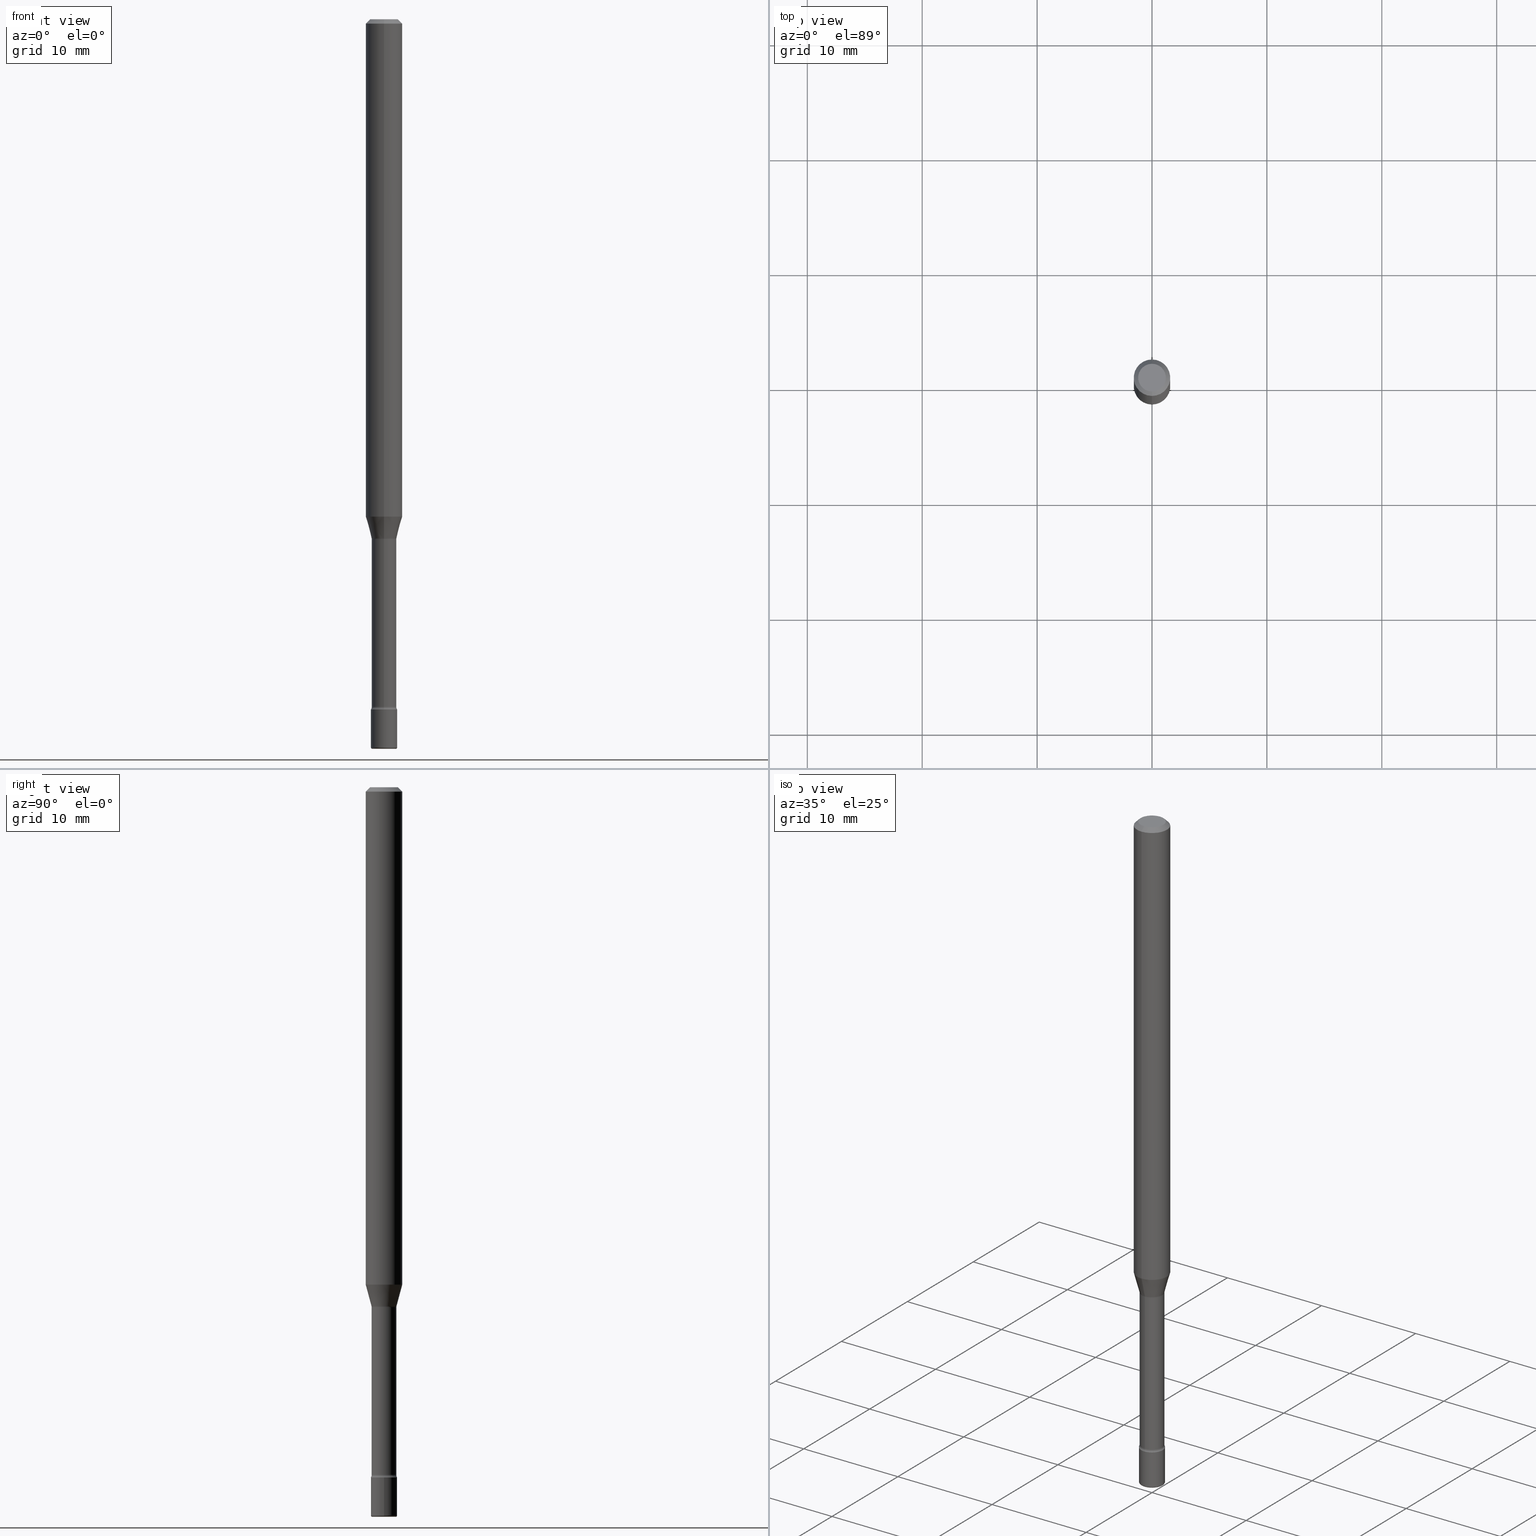
[diagram: canonical four-view strip — front | top / right | iso, engineering-drawing reading convention]
A machine part, canonical four-view strip (front | top / right | iso — engineering-drawing reading convention). The complete STEP part file that produces these views, byte-faithful:
ISO-10303-21;
HEADER;
FILE_DESCRIPTION (( 'STEP AP203' ),
    '1' );
FILE_NAME ('08951.STEP',
    '2024-03-06T20:12:09',
    ( '' ),
    ( '' ),
    'SwSTEP 2.0',
    'SolidWorks 2023',
    '' );
FILE_SCHEMA (( 'CONFIG_CONTROL_DESIGN' ));
ENDSEC;

DATA;
#1 =( NAMED_UNIT ( * ) SI_UNIT ( $, .STERADIAN. ) SOLID_ANGLE_UNIT ( ) );
#2 = CARTESIAN_POINT ( 'NONE',  ( -4.364351673553916201E-16, -0.06250000000000000000, 6.963011286457598096E-16 ) ) ;
#3 = CARTESIAN_POINT ( 'NONE',  ( 4.357763756151139053E-29, -6.221731716718877342E-15, -1.781974787463811216 ) ) ;
#4 = APPROVAL_ROLE ( '' ) ;
#5 = DIRECTION ( 'NONE',  ( -2.445468806185136597E-29, 3.491481338843145583E-15, 1.000000000000000000 ) ) ;
#6 = CIRCLE ( 'NONE', #153, 0.04499999999999999833 ) ;
#7 = FACE_OUTER_BOUND ( 'NONE', #436, .T. ) ;
#8 = CIRCLE ( 'NONE', #62, 0.04749999999999998668 ) ;
#9 = DIRECTION ( 'NONE',  ( -2.445468806185136597E-29, 3.491481338843145583E-15, 1.000000000000000000 ) ) ;
#10 = EDGE_LOOP ( 'NONE', ( #93, #165, #387, #404 ) ) ;
#11 = ADVANCED_FACE ( 'NONE', ( #146 ), #233, .T. ) ;
#12 = EDGE_LOOP ( 'NONE', ( #325, #338, #346, #192 ) ) ;
#13 = DIRECTION ( 'NONE',  ( 1.000000000000000000, -6.982962677686451304E-15, 0.000000000000000000 ) ) ;
#14 = CYLINDRICAL_SURFACE ( 'NONE', #316, 0.04499999999999999833 ) ;
#15 = AXIS2_PLACEMENT_3D ( 'NONE', #241, #333, #295 ) ;
#16 = CALENDAR_DATE ( 2024, 6, 3 ) ;
#17 = AXIS2_PLACEMENT_3D ( 'NONE', #35, #38, #360 ) ;
#18 = ORIENTED_EDGE ( 'NONE', *, *, #204, .T. ) ;
#19 = DIRECTION ( 'NONE',  ( -2.438088387897960049E-29, 3.491481338843145188E-15, 1.000000000000000000 ) ) ;
#20 = EDGE_CURVE ( 'NONE', #83, #263, #89, .T. ) ;
#21 = PERSON_AND_ORGANIZATION ( #498, #317 ) ;
#22 = CIRCLE ( 'NONE', #303, 0.04229999999999999732 ) ;
#23 = AXIS2_PLACEMENT_3D ( 'NONE', #252, #511, #415 ) ;
#24 = AXIS2_PLACEMENT_3D ( 'NONE', #342, #339, #456 ) ;
#25 = CARTESIAN_POINT ( 'NONE',  ( -3.773273898774339776E-16, -0.04749999999999998668, 1.387715984346720499E-16 ) ) ;
#26 = EDGE_CURVE ( 'NONE', #412, #492, #176, .T. ) ;
#27 = ADVANCED_FACE ( 'NONE', ( #7 ), #58, .F. ) ;
#28 = FACE_OUTER_BOUND ( 'NONE', #513, .T. ) ;
#29 = ORIENTED_EDGE ( 'NONE', *, *, #423, .F. ) ;
#30 = CONICAL_SURFACE ( 'NONE', #491, 0.04281111260566398957, 0.2617993877991496299 ) ;
#31 = DIRECTION ( 'NONE',  ( -2.445355446703953584E-29, 3.491643676072220337E-15, 1.000000000000000000 ) ) ;
#32 = MECHANICAL_CONTEXT ( 'NONE', #248, 'mechanical' ) ;
#33 = CYLINDRICAL_SURFACE ( 'NONE', #168, 0.06250000000000000000 ) ;
#34 = ORIENTED_EDGE ( 'NONE', *, *, #326, .T. ) ;
#35 = CARTESIAN_POINT ( 'NONE',  ( 3.668033170055936927E-31, -5.237465514108340440E-17, -0.01500000000000002720 ) ) ;
#36 = CARTESIAN_POINT ( 'NONE',  ( 4.440892098500625669E-16, 0.06250000000000000000, 2.598456691367323168E-16 ) ) ;
#37 = ORIENTED_EDGE ( 'NONE', *, *, #429, .T. ) ;
#38 = DIRECTION ( 'NONE',  ( -2.445355446703953584E-29, 3.491643676072220337E-15, 1.000000000000000000 ) ) ;
#39 = DIRECTION ( 'NONE',  ( -1.000000000000000000, 6.982962677686265922E-15, -4.883557194083112340E-29 ) ) ;
#40 = AXIS2_PLACEMENT_3D ( 'NONE', #69, #292, #208 ) ;
#41 = LOCAL_TIME ( 15, 12, 9.000000000000000000, #61 ) ;
#42 = DIRECTION ( 'NONE',  ( -6.982962677686265922E-15, -1.000000000000000000, 3.491643676072220337E-15 ) ) ;
#43 = CARTESIAN_POINT ( 'NONE',  ( -2.953793212661290535E-16, -0.04229999999999999732, 6.257699263891009512E-16 ) ) ;
#44 = CARTESIAN_POINT ( 'NONE',  ( 6.101444671431915719E-29, -8.711245940413648329E-15, -2.495000000000000107 ) ) ;
#45 = DIRECTION ( 'NONE',  ( -6.982962677686265133E-15, -1.000000000000000000, 6.458269488567996591E-15 ) ) ;
#46 = ORIENTED_EDGE ( 'NONE', *, *, #294, .T. ) ;
#47 = CONICAL_SURFACE ( 'NONE', #273, 0.04281111260566398957, 0.2617993877991496299 ) ;
#48 = CARTESIAN_POINT ( 'NONE',  ( -0.04499999999999999833, -8.164555422296798820E-15, -2.365000000000000213 ) ) ;
#49 = AXIS2_PLACEMENT_3D ( 'NONE', #320, #445, #81 ) ;
#50 = EDGE_CURVE ( 'NONE', #552, #160, #518, .T. ) ;
#51 = ADVANCED_FACE ( 'NONE', ( #398 ), #260, .F. ) ;
#52 = CARTESIAN_POINT ( 'NONE',  ( 4.348068183988967699E-29, -6.208465439336966076E-15, -1.778092501787273294 ) ) ;
#53 = DATE_TIME_ROLE ( 'creation_date' ) ;
#54 = ORIENTED_EDGE ( 'NONE', *, *, #255, .T. ) ;
#55 = DIRECTION ( 'NONE',  ( 1.000000000000000000, -6.982962677686259611E-15, 0.000000000000000000 ) ) ;
#56 = PERSON_AND_ORGANIZATION_ROLE ( 'classification_officer' ) ;
#57 = EDGE_CURVE ( 'NONE', #263, #83, #549, .T. ) ;
#58 = TOROIDAL_SURFACE ( 'NONE', #63, 0.05730000000000001065, 0.01500000000000003240 ) ;
#59 = DIRECTION ( 'NONE',  ( 2.445355446703953584E-29, -3.491643676072220337E-15, -1.000000000000000000 ) ) ;
#60 = VECTOR ( 'NONE', #148, 39.37007874015748143 ) ;
#61 = COORDINATED_UNIVERSAL_TIME_OFFSET ( 5, 0, .BEHIND. ) ;
#62 = AXIS2_PLACEMENT_3D ( 'NONE', #321, #533, #144 ) ;
#63 = AXIS2_PLACEMENT_3D ( 'NONE', #96, #282, #42 ) ;
#64 = CIRCLE ( 'NONE', #23, 0.06250000000000000000 ) ;
#65 = EDGE_CURVE ( 'NONE', #269, #490, #22, .T. ) ;
#66 = LOCAL_TIME ( 15, 12, 9.000000000000000000, #239 ) ;
#67 = PLANE ( 'NONE',  #77 ) ;
#68 = VERTEX_POINT ( 'NONE', #48 ) ;
#69 = CARTESIAN_POINT ( 'NONE',  ( 5.762271147656765204E-29, -8.227759951890936880E-15, -2.356414547187247077 ) ) ;
#70 = CC_DESIGN_PERSON_AND_ORGANIZATION_ASSIGNMENT ( #399, #484, ( #479 ) ) ;
#71 = EDGE_LOOP ( 'NONE', ( #355, #381, #341, #285 ) ) ;
#72 = DIMENSIONAL_EXPONENTS ( 1.000000000000000000, 0.000000000000000000, 0.000000000000000000, 0.000000000000000000, 0.000000000000000000, 0.000000000000000000, 0.000000000000000000 ) ;
#73 = FACE_OUTER_BOUND ( 'NONE', #149, .T. ) ;
#74 = ORIENTED_EDGE ( 'NONE', *, *, #380, .T. ) ;
#75 = ORIENTED_EDGE ( 'NONE', *, *, #145, .T. ) ;
#76 = DIRECTION ( 'NONE',  ( -2.445355446703953584E-29, 3.491643676072220337E-15, 1.000000000000000000 ) ) ;
#77 = AXIS2_PLACEMENT_3D ( 'NONE', #469, #106, #202 ) ;
#78 = CARTESIAN_POINT ( 'NONE',  ( -2.989484015155321567E-16, -0.04281111260567019294, -1.778092501787273072 ) ) ;
#79 = VERTEX_POINT ( 'NONE', #150 ) ;
#80 = ORIENTED_EDGE ( 'NONE', *, *, #294, .F. ) ;
#81 = DIRECTION ( 'NONE',  ( -6.982962677686265922E-15, -1.000000000000000000, 3.491643676072220337E-15 ) ) ;
#82 = CARTESIAN_POINT ( 'NONE',  ( 3.316907271900975110E-16, 0.04749999999999998668, 5.964288674281338024E-17 ) ) ;
#83 = VERTEX_POINT ( 'NONE', #359 ) ;
#84 = ORIENTED_EDGE ( 'NONE', *, *, #505, .T. ) ;
#85 = APPLICATION_PROTOCOL_DEFINITION ( 'international standard', 'config_control_design', 1994, #307 ) ;
#86 = DIRECTION ( 'NONE',  ( -1.000000000000000000, 7.105427357601049190E-15, 0.000000000000000000 ) ) ;
#87 = DIRECTION ( 'NONE',  ( -2.445468806185136597E-29, 3.491481338843145583E-15, 1.000000000000000000 ) ) ;
#88 =( CONVERSION_BASED_UNIT ( 'INCH', #306 ) LENGTH_UNIT ( ) NAMED_UNIT ( #72 ) );
#89 = CIRCLE ( 'NONE', #161, 0.04230000000000001120 ) ;
#90 = DIRECTION ( 'NONE',  ( -2.445355446703953584E-29, 3.491643676072220337E-15, 1.000000000000000000 ) ) ;
#91 = AXIS2_PLACEMENT_3D ( 'NONE', #198, #290, #55 ) ;
#92 = EDGE_LOOP ( 'NONE', ( #121, #54, #472, #510 ) ) ;
#93 = ORIENTED_EDGE ( 'NONE', *, *, #132, .F. ) ;
#94 = DIRECTION ( 'NONE',  ( -2.445355446703953584E-29, 3.491643676072220337E-15, 1.000000000000000000 ) ) ;
#95 = EDGE_LOOP ( 'NONE', ( #207, #539, #393, #390 ) ) ;
#96 = CARTESIAN_POINT ( 'NONE',  ( 4.357763756151139053E-29, -6.221731716718877342E-15, -1.781974787463811216 ) ) ;
#97 = DIRECTION ( 'NONE',  ( 1.000000000000000000, -6.982962677686267499E-15, 0.000000000000000000 ) ) ;
#98 = EDGE_CURVE ( 'NONE', #269, #364, #124, .T. ) ;
#99 = ORIENTED_EDGE ( 'NONE', *, *, #380, .F. ) ;
#100 = CARTESIAN_POINT ( 'NONE',  ( 5.783265631454850293E-29, -8.257737293910801257E-15, -2.365000000000000213 ) ) ;
#101 = ORIENTED_EDGE ( 'NONE', *, *, #132, .T. ) ;
#102 = APPROVAL_PERSON_ORGANIZATION ( #159, #417, #451 ) ;
#103 = EDGE_LOOP ( 'NONE', ( #564, #84 ) ) ;
#104 = ADVANCED_FACE ( 'NONE', ( #311 ), #352, .T. ) ;
#105 = ORIENTED_EDGE ( 'NONE', *, *, #551, .F. ) ;
#106 = DIRECTION ( 'NONE',  ( -2.445355446703953584E-29, 3.491643676072220337E-15, 1.000000000000000000 ) ) ;
#107 = PRODUCT_RELATED_PRODUCT_CATEGORY ( 'detail', '', ( #479 ) ) ;
#108 = DIRECTION ( 'NONE',  ( -6.982962677686265133E-15, -1.000000000000000000, 6.381165607227957288E-15 ) ) ;
#109 = DATE_TIME_ROLE ( 'classification_date' ) ;
#110 = DIRECTION ( 'NONE',  ( 6.982962677686265922E-15, 1.000000000000000000, -3.483106191921935554E-15 ) ) ;
#111 = CIRCLE ( 'NONE', #191, 0.06250000000000000000 ) ;
#112 = UNCERTAINTY_MEASURE_WITH_UNIT (LENGTH_MEASURE( 1.000000000000000082E-05 ), #88, 'distance_accuracy_value', 'NONE');
#113 = CC_DESIGN_APPROVAL ( #417, ( #532 ) ) ;
#114 = EDGE_CURVE ( 'NONE', #79, #427, #249, .T. ) ;
#115 = CLOSED_SHELL ( 'NONE', ( #264, #464, #189, #401, #383, #11 ) ) ;
#116 = CIRCLE ( 'NONE', #340, 0.04000000000000000083 ) ;
#117 = CARTESIAN_POINT ( 'NONE',  ( -4.287811248607203282E-16, -0.06250000000000005551, -0.01499999999999981036 ) ) ;
#118 = ORIENTED_EDGE ( 'NONE', *, *, #548, .T. ) ;
#119 = EDGE_CURVE ( 'NONE', #492, #263, #199, .T. ) ;
#120 = LINE ( 'NONE', #461, #125 ) ;
#121 = ORIENTED_EDGE ( 'NONE', *, *, #288, .F. ) ;
#122 = DIRECTION ( 'NONE',  ( -1.000000000000000000, 6.982962677686265922E-15, -4.876176775795935793E-29 ) ) ;
#123 = ORIENTED_EDGE ( 'NONE', *, *, #98, .T. ) ;
#124 = CIRCLE ( 'NONE', #454, 0.01500000000000001853 ) ;
#125 = VECTOR ( 'NONE', #369, 39.37007874015748143 ) ;
#126 = CARTESIAN_POINT ( 'NONE',  ( -4.001237614313795287E-16, -0.05730000000000623483, -1.781974787463810994 ) ) ;
#127 = VERTEX_POINT ( 'NONE', #332 ) ;
#128 = ADVANCED_FACE ( 'NONE', ( #553 ), #67, .F. ) ;
#129 = ORIENTED_EDGE ( 'NONE', *, *, #26, .T. ) ;
#130 = APPLICATION_PROTOCOL_DEFINITION ( 'international standard', 'config_control_design', 1994, #248 ) ;
#131 = DIRECTION ( 'NONE',  ( -2.445355446703953584E-29, 3.491643676072220337E-15, 1.000000000000000000 ) ) ;
#132 = EDGE_CURVE ( 'NONE', #175, #569, #426, .T. ) ;
#133 = DATE_AND_TIME ( #525, #169 ) ;
#134 = DIRECTION ( 'NONE',  ( 1.000000000000000000, -6.982962677686269077E-15, 0.000000000000000000 ) ) ;
#135 = ORIENTED_EDGE ( 'NONE', *, *, #424, .T. ) ;
#136 = DIRECTION ( 'NONE',  ( -2.445355446703953584E-29, 3.491643676072220337E-15, 1.000000000000000000 ) ) ;
#137 = CARTESIAN_POINT ( 'NONE',  ( -4.364351673553912750E-16, -0.06250000000000005551, -0.01499999999999981036 ) ) ;
#138 = AXIS2_PLACEMENT_3D ( 'NONE', #280, #453, #229 ) ;
#139 = EDGE_CURVE ( 'NONE', #490, #269, #475, .T. ) ;
#140 = CARTESIAN_POINT ( 'NONE',  ( 6.101444671431915719E-29, -8.711245940413648329E-15, -2.495000000000000107 ) ) ;
#141 = TOROIDAL_SURFACE ( 'NONE', #463, 0.04000000000000000083, 0.004999999999999771988 ) ;
#142 = DIRECTION ( 'NONE',  ( -6.982962677686263555E-15, -1.000000000000000000, 0.000000000000000000 ) ) ;
#143 = DIRECTION ( 'NONE',  ( 1.000000000000000000, 0.000000000000000000, 0.000000000000000000 ) ) ;
#144 = DIRECTION ( 'NONE',  ( -6.982962677686265133E-15, -1.000000000000000000, 3.491643676072220731E-15 ) ) ;
#145 = EDGE_CURVE ( 'NONE', #492, #160, #120, .T. ) ;
#146 = FACE_OUTER_BOUND ( 'NONE', #172, .T. ) ;
#147 = APPROVAL_DATE_TIME ( #155, #417 ) ;
#148 = DIRECTION ( 'NONE',  ( -2.445355446703953584E-29, 3.491643676072220337E-15, 1.000000000000000000 ) ) ;
#149 = EDGE_LOOP ( 'NONE', ( #129, #75, #500, #289 ) ) ;
#150 = CARTESIAN_POINT ( 'NONE',  ( 0.04499999999999989425, -9.025479260909530016E-15, -2.495000000000000107 ) ) ;
#151 = AXIS2_PLACEMENT_3D ( 'NONE', #185, #87, #272 ) ;
#152 = CIRCLE ( 'NONE', #261, 0.004999999999999776325 ) ;
#153 = AXIS2_PLACEMENT_3D ( 'NONE', #100, #94, #278 ) ;
#154 = DIRECTION ( 'NONE',  ( -4.851104656540965064E-15, -0.7071067811865501263, -0.7071067811865449082 ) ) ;
#155 = DATE_AND_TIME ( #16, #371 ) ;
#156 = DIRECTION ( 'NONE',  ( -2.445468806185136597E-29, 3.491481338843145583E-15, 1.000000000000000000 ) ) ;
#157 = APPROVAL_DATE_TIME ( #459, #465 ) ;
#158 = CARTESIAN_POINT ( 'NONE',  ( 4.440892098501044258E-16, 0.06249999999999408112, -1.704612573687109167 ) ) ;
#159 = PERSON_AND_ORGANIZATION ( #498, #317 ) ;
#160 = VERTEX_POINT ( 'NONE', #158 ) ;
#161 = AXIS2_PLACEMENT_3D ( 'NONE', #495, #448, #45 ) ;
#162 = AXIS2_PLACEMENT_3D ( 'NONE', #345, #357, #400 ) ;
#163 = ADVANCED_FACE ( 'NONE', ( #467 ), #329, .T. ) ;
#164 = CC_DESIGN_DATE_AND_TIME_ASSIGNMENT ( #376, #109, ( #532 ) ) ;
#165 = ORIENTED_EDGE ( 'NONE', *, *, #483, .F. ) ;
#166 = CARTESIAN_POINT ( 'NONE',  ( 0.04499999999999999833, -3.142333204958819823E-16, 2.194279549108170967E-30 ) ) ;
#167 = EDGE_LOOP ( 'NONE', ( #374, #101, #521, #450 ) ) ;
#168 = AXIS2_PLACEMENT_3D ( 'NONE', #517, #90, #174 ) ;
#169 = LOCAL_TIME ( 15, 12, 9.000000000000000000, #570 ) ;
#170 = DIRECTION ( 'NONE',  ( 1.000000000000000000, -7.105427357601001070E-15, 4.926317496599761806E-29 ) ) ;
#171 = FACE_OUTER_BOUND ( 'NONE', #71, .T. ) ;
#172 = EDGE_LOOP ( 'NONE', ( #99, #416, #18, #315 ) ) ;
#173 = ORIENTED_EDGE ( 'NONE', *, *, #50, .T. ) ;
#174 = DIRECTION ( 'NONE',  ( -6.982962677686265922E-15, -1.000000000000000000, 3.491643676072219943E-15 ) ) ;
#175 = VERTEX_POINT ( 'NONE', #25 ) ;
#176 = CIRCLE ( 'NONE', #508, 0.04281111260566398957 ) ;
#177 = DATE_AND_TIME ( #353, #330 ) ;
#178 = AXIS2_PLACEMENT_3D ( 'NONE', #389, #344, #122 ) ;
#179 = CARTESIAN_POINT ( 'NONE',  ( -2.953793212660714173E-16, -0.04230000000000822685, -2.356414547187247077 ) ) ;
#180 = ADVANCED_FACE ( 'NONE', ( #382 ), #530, .T. ) ;
#181 = DIRECTION ( 'NONE',  ( -2.445355446703953584E-29, 3.491643676072220337E-15, 1.000000000000000000 ) ) ;
#182 = CARTESIAN_POINT ( 'NONE',  ( -4.364351673553497119E-16, -0.06250000000000591194, -1.704612573687108723 ) ) ;
#183 = DIRECTION ( 'NONE',  ( -6.982962677686265133E-15, -1.000000000000000000, 6.381165607227957288E-15 ) ) ;
#184 = ORIENTED_EDGE ( 'NONE', *, *, #242, .F. ) ;
#185 = CARTESIAN_POINT ( 'NONE',  ( 6.101444671431915719E-29, -8.711245940413648329E-15, -2.495000000000000107 ) ) ;
#186 = CARTESIAN_POINT ( 'NONE',  ( -0.04000000000000000083, -8.427028846109608002E-15, -2.495000000000000107 ) ) ;
#187 = DIRECTION ( 'NONE',  ( -2.445355446703953584E-29, 3.491643676072220337E-15, 1.000000000000000000 ) ) ;
#188 = DIRECTION ( 'NONE',  ( -2.445355446703953584E-29, 3.491643676072220337E-15, 1.000000000000000000 ) ) ;
#189 = ADVANCED_FACE ( 'NONE', ( #246 ), #420, .T. ) ;
#190 = DIRECTION ( 'NONE',  ( 1.000000000000000000, -6.982962677686259611E-15, 0.000000000000000000 ) ) ;
#191 = AXIS2_PLACEMENT_3D ( 'NONE', #438, #563, #271 ) ;
#192 = ORIENTED_EDGE ( 'NONE', *, *, #98, .F. ) ;
#193 = DIRECTION ( 'NONE',  ( -6.982962677686266711E-15, -1.000000000000000000, 6.458269488567998169E-15 ) ) ;
#194 = LINE ( 'NONE', #536, #60 ) ;
#195 = DIRECTION ( 'NONE',  ( -2.445355446703953584E-29, 3.491643676072220337E-15, 1.000000000000000000 ) ) ;
#196 = APPROVAL_ROLE ( '' ) ;
#197 = ORIENTED_EDGE ( 'NONE', *, *, #466, .T. ) ;
#198 = CARTESIAN_POINT ( 'NONE',  ( 6.113672015462840371E-29, -8.728703347107863365E-15, -2.499999999999999556 ) ) ;
#199 = CIRCLE ( 'NONE', #305, 0.01500000000000003587 ) ;
#200 = CIRCLE ( 'NONE', #362, 0.04499999999999999833 ) ;
#201 = DIRECTION ( 'NONE',  ( -1.807323732225325801E-15, -0.2588190451025175753, 0.9659258262890690894 ) ) ;
#202 = DIRECTION ( 'NONE',  ( -6.982962677686265922E-15, -1.000000000000000000, 3.491643676072220337E-15 ) ) ;
#203 = PERSON_AND_ORGANIZATION ( #498, #317 ) ;
#204 = EDGE_CURVE ( 'NONE', #79, #127, #254, .T. ) ;
#205 = CIRCLE ( 'NONE', #15, 0.01500000000000001853 ) ;
#206 = TOROIDAL_SURFACE ( 'NONE', #476, 0.05730000000000001759, 0.01500000000000001506 ) ;
#207 = ORIENTED_EDGE ( 'NONE', *, *, #429, .F. ) ;
#208 = DIRECTION ( 'NONE',  ( -6.982962677686266711E-15, -1.000000000000000000, 6.458269488567998169E-15 ) ) ;
#209 = ORIENTED_EDGE ( 'NONE', *, *, #145, .F. ) ;
#210 = DIRECTION ( 'NONE',  ( -2.445355446703953584E-29, 3.491643676072220337E-15, 1.000000000000000000 ) ) ;
#211 = ORIENTED_EDGE ( 'NONE', *, *, #466, .F. ) ;
#212 = CIRCLE ( 'NONE', #349, 0.004999999999999776325 ) ;
#213 = DIRECTION ( 'NONE',  ( -2.445355446703953584E-29, 3.491643676072220337E-15, 1.000000000000000000 ) ) ;
#214 = ORIENTED_EDGE ( 'NONE', *, *, #297, .F. ) ;
#215 = DIRECTION ( 'NONE',  ( -2.445468806185136597E-29, 3.491481338843145583E-15, 1.000000000000000000 ) ) ;
#216 = EDGE_CURVE ( 'NONE', #220, #569, #64, .T. ) ;
#217 = DIRECTION ( 'NONE',  ( -6.982962677686263555E-15, -1.000000000000000000, 0.000000000000000000 ) ) ;
#218 = EDGE_CURVE ( 'NONE', #412, #552, #504, .T. ) ;
#219 = LINE ( 'NONE', #396, #378 ) ;
#220 = VERTEX_POINT ( 'NONE', #372 ) ;
#221 = DIRECTION ( 'NONE',  ( -1.000000000000000000, 6.982962677686265922E-15, -4.883557194083112340E-29 ) ) ;
#222 = CARTESIAN_POINT ( 'NONE',  ( 3.197442310921029545E-16, 0.04499999999999174799, -2.365000000000000213 ) ) ;
#223 = CIRCLE ( 'NONE', #91, 0.04000000000000000083 ) ;
#224 =( GEOMETRIC_REPRESENTATION_CONTEXT ( 3 ) GLOBAL_UNCERTAINTY_ASSIGNED_CONTEXT ( ( #112 ) ) GLOBAL_UNIT_ASSIGNED_CONTEXT ( ( #88, #266, #1 ) ) REPRESENTATION_CONTEXT ( 'NONE', 'WORKASPACE' ) );
#225 = DIRECTION ( 'NONE',  ( 1.000000000000000000, -6.982962677686266711E-15, 4.876176775795935793E-29 ) ) ;
#226 = DIRECTION ( 'NONE',  ( -2.445355446703953584E-29, 3.491643676072220337E-15, 1.000000000000000000 ) ) ;
#227 = CARTESIAN_POINT ( 'NONE',  ( 5.783533726627847872E-29, -8.257353366364040046E-15, -2.365000000000000213 ) ) ;
#228 = DIRECTION ( 'NONE',  ( -2.445468806185136597E-29, 3.491481338843145583E-15, 1.000000000000000000 ) ) ;
#229 = DIRECTION ( 'NONE',  ( -6.982962677686265922E-15, -1.000000000000000000, 4.370956789862821150E-15 ) ) ;
#230 = EDGE_CURVE ( 'NONE', #490, #560, #205, .T. ) ;
#231 = APPROVAL_STATUS ( 'not_yet_approved' ) ;
#232 = LINE ( 'NONE', #407, #385 ) ;
#233 = CYLINDRICAL_SURFACE ( 'NONE', #529, 0.04499999999999999833 ) ;
#234 = AXIS2_PLACEMENT_3D ( 'NONE', #368, #187, #537 ) ;
#235 = CARTESIAN_POINT ( 'NONE',  ( 6.616964112604452341E-46, -9.463647414913262019E-32, -2.708147617875838145E-17 ) ) ;
#236 = AXIS2_PLACEMENT_3D ( 'NONE', #523, #131, #310 ) ;
#237 = TOROIDAL_SURFACE ( 'NONE', #49, 0.05730000000000001759, 0.01500000000000001506 ) ;
#238 = ORIENTED_EDGE ( 'NONE', *, *, #218, .T. ) ;
#239 = COORDINATED_UNIVERSAL_TIME_OFFSET ( 5, 0, .BEHIND. ) ;
#240 = EDGE_CURVE ( 'NONE', #492, #412, #410, .T. ) ;
#241 = CARTESIAN_POINT ( 'NONE',  ( 4.071409875905951183E-16, 0.05729999999999178806, -2.356414547187247965 ) ) ;
#242 = EDGE_CURVE ( 'NONE', #435, #79, #152, .T. ) ;
#243 = ADVANCED_FACE ( 'NONE', ( #28 ), #30, .T. ) ;
#244 = FACE_OUTER_BOUND ( 'NONE', #486, .T. ) ;
#245 = VECTOR ( 'NONE', #154, 39.37007874015748143 ) ;
#246 = FACE_OUTER_BOUND ( 'NONE', #460, .T. ) ;
#247 = PERSON_AND_ORGANIZATION ( #498, #317 ) ;
#248 = APPLICATION_CONTEXT ( 'configuration controlled 3d designs of mechanical parts and assemblies' ) ;
#249 = CIRCLE ( 'NONE', #151, 0.04500000000000000527 ) ;
#250 = AXIS2_PLACEMENT_3D ( 'NONE', #507, #59, #110 ) ;
#251 = APPROVAL_PERSON_ORGANIZATION ( #247, #465, #196 ) ;
#252 = CARTESIAN_POINT ( 'NONE',  ( 3.668033170055936927E-31, -5.237465514108340440E-17, -0.01500000000000002720 ) ) ;
#253 = EDGE_LOOP ( 'NONE', ( #173, #327, #419, #572 ) ) ;
#254 = LINE ( 'NONE', #166, #550 ) ;
#255 = EDGE_CURVE ( 'NONE', #304, #435, #223, .T. ) ;
#256 = DESIGN_CONTEXT ( 'detailed design', #307, 'design' ) ;
#257 = ORIENTED_EDGE ( 'NONE', *, *, #114, .T. ) ;
#258 = CARTESIAN_POINT ( 'NONE',  ( -1.169113584055446105E-44, 1.669184350826100908E-30, 4.780733988912460139E-16 ) ) ;
#259 = ORIENTED_EDGE ( 'NONE', *, *, #288, .T. ) ;
#260 = TOROIDAL_SURFACE ( 'NONE', #474, 0.05730000000000001065, 0.01500000000000003240 ) ;
#261 = AXIS2_PLACEMENT_3D ( 'NONE', #458, #543, #13 ) ;
#262 = CARTESIAN_POINT ( 'NONE',  ( 3.840629472727447874E-16, 0.04749999999999998668, -1.929345507921888190E-16 ) ) ;
#263 = VERTEX_POINT ( 'NONE', #418 ) ;
#264 = ADVANCED_FACE ( 'NONE', ( #244 ), #14, .T. ) ;
#265 = CC_DESIGN_PERSON_AND_ORGANIZATION_ASSIGNMENT ( #203, #283, ( #432 ) ) ;
#266 =( NAMED_UNIT ( * ) PLANE_ANGLE_UNIT ( ) SI_UNIT ( $, .RADIAN. ) );
#267 = DIRECTION ( 'NONE',  ( 6.982962677686265922E-15, 1.000000000000000000, -3.491643676072220337E-15 ) ) ;
#268 = ORIENTED_EDGE ( 'NONE', *, *, #119, .F. ) ;
#269 = VERTEX_POINT ( 'NONE', #179 ) ;
#270 = PERSON_AND_ORGANIZATION ( #498, #317 ) ;
#271 = DIRECTION ( 'NONE',  ( -6.982962677686265922E-15, -1.000000000000000000, 4.370956789862821150E-15 ) ) ;
#272 = DIRECTION ( 'NONE',  ( 1.000000000000000000, -6.982962677686267499E-15, 0.000000000000000000 ) ) ;
#273 = AXIS2_PLACEMENT_3D ( 'NONE', #300, #31, #183 ) ;
#274 = APPROVAL_PERSON_ORGANIZATION ( #493, #545, #4 ) ;
#275 = CYLINDRICAL_SURFACE ( 'NONE', #431, 0.04229999999999999732 ) ;
#276 = CC_DESIGN_PERSON_AND_ORGANIZATION_ASSIGNMENT ( #21, #56, ( #532 ) ) ;
#277 = CARTESIAN_POINT ( 'NONE',  ( 0.000000000000000000, 0.000000000000000000, 0.000000000000000000 ) ) ;
#278 = DIRECTION ( 'NONE',  ( -6.982962677686265133E-15, -1.000000000000000000, 6.070773319253918263E-15 ) ) ;
#279 = VERTEX_POINT ( 'NONE', #262 ) ;
#280 = CARTESIAN_POINT ( 'NONE',  ( 4.168383641585816332E-29, -5.951899713067785785E-15, -1.704612573687108945 ) ) ;
#281 = CARTESIAN_POINT ( 'NONE',  ( 3.741402302838848194E-16, 0.04281111260565777926, -1.778092501787273516 ) ) ;
#282 = DIRECTION ( 'NONE',  ( -2.445355446703953584E-29, 3.491643676072220337E-15, 1.000000000000000000 ) ) ;
#283 = PERSON_AND_ORGANIZATION_ROLE ( 'design_supplier' ) ;
#284 = AXIS2_PLACEMENT_3D ( 'NONE', #126, #39, #217 ) ;
#285 = ORIENTED_EDGE ( 'NONE', *, *, #216, .F. ) ;
#286 = ORIENTED_EDGE ( 'NONE', *, *, #20, .F. ) ;
#287 = PERSON_AND_ORGANIZATION ( #498, #317 ) ;
#288 = EDGE_CURVE ( 'NONE', #304, #427, #212, .T. ) ;
#289 = ORIENTED_EDGE ( 'NONE', *, *, #218, .F. ) ;
#290 = DIRECTION ( 'NONE',  ( -2.445468806185136597E-29, 3.491481338843145583E-15, 1.000000000000000000 ) ) ;
#291 = ADVANCED_FACE ( 'NONE', ( #73 ), #47, .T. ) ;
#292 = DIRECTION ( 'NONE',  ( -2.445355446703953584E-29, 3.491643676072220337E-15, 1.000000000000000000 ) ) ;
#293 = CALENDAR_DATE ( 2024, 6, 3 ) ;
#294 = EDGE_CURVE ( 'NONE', #412, #83, #361, .T. ) ;
#295 = DIRECTION ( 'NONE',  ( 7.105427357600998703E-15, 1.000000000000000000, 0.000000000000000000 ) ) ;
#296 = VECTOR ( 'NONE', #188, 39.37007874015748143 ) ;
#297 = EDGE_CURVE ( 'NONE', #160, #552, #111, .T. ) ;
#298 = CARTESIAN_POINT ( 'NONE',  ( -2.989484015155321567E-16, -0.04281111260567019294, -1.778092501787273072 ) ) ;
#299 = EDGE_LOOP ( 'NONE', ( #414, #37, #286, #105 ) ) ;
#300 = CARTESIAN_POINT ( 'NONE',  ( 4.348068183988967699E-29, -6.208465439336966076E-15, -1.778092501787273294 ) ) ;
#301 = EDGE_LOOP ( 'NONE', ( #470, #395 ) ) ;
#302 = DIRECTION ( 'NONE',  ( 2.445355446703953584E-29, -3.491643676072220337E-15, -1.000000000000000000 ) ) ;
#303 = AXIS2_PLACEMENT_3D ( 'NONE', #322, #136, #193 ) ;
#304 = VERTEX_POINT ( 'NONE', #313 ) ;
#305 = AXIS2_PLACEMENT_3D ( 'NONE', #546, #170, #335 ) ;
#306 = LENGTH_MEASURE_WITH_UNIT ( LENGTH_MEASURE( 0.02539999999999999897 ), #487 );
#307 = APPLICATION_CONTEXT ( 'configuration controlled 3d designs of mechanical parts and assemblies' ) ;
#308 = DIRECTION ( 'NONE',  ( -2.445355446703953584E-29, 3.491643676072220337E-15, 1.000000000000000000 ) ) ;
#309 = DIRECTION ( 'NONE',  ( -6.982962677686265133E-15, -1.000000000000000000, 3.491643676072220731E-15 ) ) ;
#310 = DIRECTION ( 'NONE',  ( -6.982962677686265133E-15, -1.000000000000000000, 6.070773319253918263E-15 ) ) ;
#311 = FACE_OUTER_BOUND ( 'NONE', #299, .T. ) ;
#312 = CARTESIAN_POINT ( 'NONE',  ( 5.762538269587286723E-29, -8.227377418082795508E-15, -2.356414547187247521 ) ) ;
#313 = CARTESIAN_POINT ( 'NONE',  ( -0.04000000000000000083, -8.417993981062714183E-15, -2.499999999999999556 ) ) ;
#314 = ORIENTED_EDGE ( 'NONE', *, *, #26, .F. ) ;
#315 = ORIENTED_EDGE ( 'NONE', *, *, #326, .F. ) ;
#316 = AXIS2_PLACEMENT_3D ( 'NONE', #506, #156, #225 ) ;
#317 = ORGANIZATION ( 'UNSPECIFIED', 'UNSPECIFIED', '' ) ;
#318 = DIRECTION ( 'NONE',  ( -2.445468806185136597E-29, 3.491481338843145583E-15, 1.000000000000000000 ) ) ;
#319 = CARTESIAN_POINT ( 'NONE',  ( -1.169113584055446105E-44, 1.669184350826100908E-30, 4.780733988912460139E-16 ) ) ;
#320 = CARTESIAN_POINT ( 'NONE',  ( 5.762538269587286723E-29, -8.227377418082795508E-15, -2.356414547187247521 ) ) ;
#321 = CARTESIAN_POINT ( 'NONE',  ( 6.616964112604452341E-46, -9.463647414913262019E-32, -2.708147617875838145E-17 ) ) ;
#322 = CARTESIAN_POINT ( 'NONE',  ( 5.762271147656765204E-29, -8.227759951890936880E-15, -2.356414547187247077 ) ) ;
#323 = SECURITY_CLASSIFICATION_LEVEL ( 'unclassified' ) ;
#324 = CARTESIAN_POINT ( 'NONE',  ( 0.04000000000000000083, -9.008021854215313402E-15, -2.499999999999999556 ) ) ;
#325 = ORIENTED_EDGE ( 'NONE', *, *, #139, .F. ) ;
#326 = EDGE_CURVE ( 'NONE', #68, #127, #567, .T. ) ;
#327 = ORIENTED_EDGE ( 'NONE', *, *, #351, .T. ) ;
#328 = ADVANCED_FACE ( 'NONE', ( #526 ), #559, .F. ) ;
#329 = CONICAL_SURFACE ( 'NONE', #24, 0.06250000000000000000, 0.7853981633974485010 ) ;
#330 = LOCAL_TIME ( 15, 12, 9.000000000000000000, #391 ) ;
#331 = ORIENTED_EDGE ( 'NONE', *, *, #240, .T. ) ;
#332 = CARTESIAN_POINT ( 'NONE',  ( 0.04499999999999999833, -8.571586686859921733E-15, -2.365000000000000213 ) ) ;
#333 = DIRECTION ( 'NONE',  ( 1.000000000000000000, -7.105427357601001070E-15, 4.926317496599761806E-29 ) ) ;
#334 = ADVANCED_FACE ( 'NONE', ( #171 ), #33, .T. ) ;
#335 = DIRECTION ( 'NONE',  ( 7.105427357600997914E-15, 1.000000000000000000, 0.000000000000000000 ) ) ;
#336 = VECTOR ( 'NONE', #201, 39.37007874015748854 ) ;
#337 = ADVANCED_FACE ( 'NONE', ( #392 ), #473, .T. ) ;
#338 = ORIENTED_EDGE ( 'NONE', *, *, #230, .T. ) ;
#339 = DIRECTION ( 'NONE',  ( 2.445355446703953584E-29, -3.491643676072220337E-15, -1.000000000000000000 ) ) ;
#340 = AXIS2_PLACEMENT_3D ( 'NONE', #411, #9, #190 ) ;
#341 = ORIENTED_EDGE ( 'NONE', *, *, #388, .T. ) ;
#342 = CARTESIAN_POINT ( 'NONE',  ( 3.668033170055936927E-31, -5.237465514108340440E-17, -0.01500000000000002720 ) ) ;
#343 = ORIENTED_EDGE ( 'NONE', *, *, #114, .F. ) ;
#344 = DIRECTION ( 'NONE',  ( 2.438088387897960049E-29, -3.491481338843145188E-15, -1.000000000000000000 ) ) ;
#345 = CARTESIAN_POINT ( 'NONE',  ( -1.169113584055446105E-44, 1.669184350826100908E-30, 4.780733988912460139E-16 ) ) ;
#346 = ORIENTED_EDGE ( 'NONE', *, *, #423, .T. ) ;
#347 = VECTOR ( 'NONE', #308, 39.37007874015748143 ) ;
#348 = ORIENTED_EDGE ( 'NONE', *, *, #57, .T. ) ;
#349 = AXIS2_PLACEMENT_3D ( 'NONE', #186, #471, #86 ) ;
#350 = CARTESIAN_POINT ( 'NONE',  ( -3.142333204958241982E-16, -0.04500000000000827644, -2.364999999999999769 ) ) ;
#351 = EDGE_CURVE ( 'NONE', #160, #220, #441, .T. ) ;
#352 = CYLINDRICAL_SURFACE ( 'NONE', #566, 0.04229999999999999732 ) ;
#353 = CALENDAR_DATE ( 2024, 6, 3 ) ;
#354 = CARTESIAN_POINT ( 'NONE',  ( 5.783533726627847872E-29, -8.257353366364040046E-15, -2.365000000000000213 ) ) ;
#355 = ORIENTED_EDGE ( 'NONE', *, *, #351, .F. ) ;
#356 = DIRECTION ( 'NONE',  ( -6.982962677686265133E-15, -1.000000000000000000, 6.381165607227957288E-15 ) ) ;
#357 = DIRECTION ( 'NONE',  ( -2.445355446703953584E-29, 3.491643676072220337E-15, 1.000000000000000000 ) ) ;
#358 = MANIFOLD_SOLID_BREP ( 'Body-Move/Copy2[1]', #115 ) ;
#359 = CARTESIAN_POINT ( 'NONE',  ( -2.953793212660855675E-16, -0.04230000000000623539, -1.781974787463810994 ) ) ;
#360 = DIRECTION ( 'NONE',  ( -6.982962677686265922E-15, -1.000000000000000000, 3.483106191921935554E-15 ) ) ;
#361 = CIRCLE ( 'NONE', #284, 0.01500000000000003587 ) ;
#362 = AXIS2_PLACEMENT_3D ( 'NONE', #227, #215, #478 ) ;
#363 = FACE_OUTER_BOUND ( 'NONE', #482, .T. ) ;
#364 = VERTEX_POINT ( 'NONE', #350 ) ;
#365 = CARTESIAN_POINT ( 'NONE',  ( -0.04499999999999989425, -8.391501709321603750E-15, -2.495000000000000107 ) ) ;
#366 = ADVANCED_FACE ( 'NONE', ( #480 ), #275, .T. ) ;
#367 = CC_DESIGN_PERSON_AND_ORGANIZATION_ASSIGNMENT ( #287, #413, ( #432 ) ) ;
#368 = CARTESIAN_POINT ( 'NONE',  ( 4.357561752413750635E-29, -6.222020997568155509E-15, -1.781974787463811216 ) ) ;
#369 = DIRECTION ( 'NONE',  ( 1.839019923739595977E-15, 0.2588190451025243477, 0.9659258262890673130 ) ) ;
#370 = TOROIDAL_SURFACE ( 'NONE', #509, 0.04000000000000000083, 0.004999999999999771988 ) ;
#371 = LOCAL_TIME ( 15, 12, 9.000000000000000000, #409 ) ;
#372 = CARTESIAN_POINT ( 'NONE',  ( 4.440892098501046230E-16, 0.06249999999999995143, -0.01500000000000024578 ) ) ;
#373 = CC_DESIGN_DATE_AND_TIME_ASSIGNMENT ( #133, #53, ( #422 ) ) ;
#374 = ORIENTED_EDGE ( 'NONE', *, *, #505, .F. ) ;
#375 = DIRECTION ( 'NONE',  ( -2.445468806185136877E-29, 3.491481338843145188E-15, 1.000000000000000000 ) ) ;
#376 = DATE_AND_TIME ( #547, #41 ) ;
#377 = ORIENTED_EDGE ( 'NONE', *, *, #240, .F. ) ;
#378 = VECTOR ( 'NONE', #446, 39.37007874015748143 ) ;
#379 = CC_DESIGN_APPROVAL ( #465, ( #432 ) ) ;
#380 = EDGE_CURVE ( 'NONE', #427, #68, #219, .T. ) ;
#381 = ORIENTED_EDGE ( 'NONE', *, *, #297, .T. ) ;
#382 = FACE_OUTER_BOUND ( 'NONE', #167, .T. ) ;
#383 = ADVANCED_FACE ( 'NONE', ( #434 ), #370, .T. ) ;
#384 = CARTESIAN_POINT ( 'NONE',  ( 4.348068183988967699E-29, -6.208465439336966076E-15, -1.778092501787273294 ) ) ;
#385 = VECTOR ( 'NONE', #499, 39.37007874015748143 ) ;
#386 = CC_DESIGN_APPROVAL ( #545, ( #422 ) ) ;
#387 = ORIENTED_EDGE ( 'NONE', *, *, #440, .T. ) ;
#388 = EDGE_CURVE ( 'NONE', #552, #569, #485, .T. ) ;
#389 = CARTESIAN_POINT ( 'NONE',  ( 2.793185071075117657E-16, 0.03999999999999127864, -2.500000000000000000 ) ) ;
#390 = ORIENTED_EDGE ( 'NONE', *, *, #57, .F. ) ;
#391 = COORDINATED_UNIVERSAL_TIME_OFFSET ( 5, 0, .BEHIND. ) ;
#392 = FACE_OUTER_BOUND ( 'NONE', #253, .T. ) ;
#393 = ORIENTED_EDGE ( 'NONE', *, *, #551, .T. ) ;
#394 = PRODUCT_DEFINITION_SHAPE ( 'NONE', 'NONE',  #422 ) ;
#395 = ORIENTED_EDGE ( 'NONE', *, *, #255, .F. ) ;
#396 = CARTESIAN_POINT ( 'NONE',  ( -0.04499999999999999833, 3.197442310920450718E-16, -2.213520790614707560E-30 ) ) ;
#397 = AXIS2_PLACEMENT_3D ( 'NONE', #52, #210, #428 ) ;
#398 = FACE_OUTER_BOUND ( 'NONE', #524, .T. ) ;
#399 = PERSON_AND_ORGANIZATION ( #498, #317 ) ;
#400 = DIRECTION ( 'NONE',  ( -6.982962677686265922E-15, -1.000000000000000000, 3.491643676072219943E-15 ) ) ;
#401 = ADVANCED_FACE ( 'NONE', ( #528 ), #430, .T. ) ;
#402 = DIRECTION ( 'NONE',  ( -6.982962677686266711E-15, -1.000000000000000000, 3.491643676072218759E-15 ) ) ;
#403 = DIRECTION ( 'NONE',  ( 1.000000000000000000, -6.982962677686259611E-15, 4.883557194083110659E-29 ) ) ;
#404 = ORIENTED_EDGE ( 'NONE', *, *, #216, .T. ) ;
#405 = ORIENTED_EDGE ( 'NONE', *, *, #230, .F. ) ;
#406 = DIRECTION ( 'NONE',  ( -2.445355446703953584E-29, 3.491643676072220337E-15, 1.000000000000000000 ) ) ;
#407 = CARTESIAN_POINT ( 'NONE',  ( 4.364351673553919652E-16, 0.06249999999999995143, -0.01500000000000024578 ) ) ;
#408 = DIRECTION ( 'NONE',  ( 1.000000000000000000, -6.982962677686266711E-15, 4.876176775795935793E-29 ) ) ;
#409 = COORDINATED_UNIVERSAL_TIME_OFFSET ( 5, 0, .BEHIND. ) ;
#410 = CIRCLE ( 'NONE', #397, 0.04281111260566398957 ) ;
#411 = CARTESIAN_POINT ( 'NONE',  ( 6.113672015462840371E-29, -8.728703347107863365E-15, -2.499999999999999556 ) ) ;
#412 = VERTEX_POINT ( 'NONE', #78 ) ;
#413 = PERSON_AND_ORGANIZATION_ROLE ( 'creator' ) ;
#414 = ORIENTED_EDGE ( 'NONE', *, *, #65, .T. ) ;
#415 = DIRECTION ( 'NONE',  ( -6.982962677686265922E-15, -1.000000000000000000, 3.483106191921935554E-15 ) ) ;
#416 = ORIENTED_EDGE ( 'NONE', *, *, #488, .T. ) ;
#417 = APPROVAL ( #544, 'UNSPECIFIED' ) ;
#418 = CARTESIAN_POINT ( 'NONE',  ( 3.005595772265800451E-16, 0.04229999999999378701, -1.781974787463811438 ) ) ;
#419 = ORIENTED_EDGE ( 'NONE', *, *, #562, .F. ) ;
#420 = PLANE ( 'NONE',  #556 ) ;
#421 = APPROVAL_STATUS ( 'not_yet_approved' ) ;
#422 = PRODUCT_DEFINITION ( 'UNKNOWN', '', #432, #256 ) ;
#423 = EDGE_CURVE ( 'NONE', #560, #364, #502, .T. ) ;
#424 = EDGE_CURVE ( 'NONE', #435, #304, #116, .T. ) ;
#425 = CIRCLE ( 'NONE', #444, 0.04500000000000000527 ) ;
#426 = LINE ( 'NONE', #117, #245 ) ;
#427 = VERTEX_POINT ( 'NONE', #365 ) ;
#428 = DIRECTION ( 'NONE',  ( -6.982962677686265133E-15, -1.000000000000000000, 6.381165607227957288E-15 ) ) ;
#429 = EDGE_CURVE ( 'NONE', #490, #263, #194, .T. ) ;
#430 = PLANE ( 'NONE',  #178 ) ;
#431 = AXIS2_PLACEMENT_3D ( 'NONE', #258, #213, #571 ) ;
#432 = PRODUCT_DEFINITION_FORMATION_WITH_SPECIFIED_SOURCE ( 'ANY', '', #479, .NOT_KNOWN. ) ;
#433 = FACE_OUTER_BOUND ( 'NONE', #12, .T. ) ;
#434 = FACE_OUTER_BOUND ( 'NONE', #92, .T. ) ;
#435 = VERTEX_POINT ( 'NONE', #324 ) ;
#436 = EDGE_LOOP ( 'NONE', ( #268, #314, #46, #457 ) ) ;
#437 = LINE ( 'NONE', #43, #296 ) ;
#438 = CARTESIAN_POINT ( 'NONE',  ( 4.168383641585816332E-29, -5.951899713067785785E-15, -1.704612573687108945 ) ) ;
#439 = PERSON_AND_ORGANIZATION_ROLE ( 'creator' ) ;
#440 = EDGE_CURVE ( 'NONE', #279, #220, #232, .T. ) ;
#441 = LINE ( 'NONE', #36, #347 ) ;
#442 = AXIS2_PLACEMENT_3D ( 'NONE', #82, #302, #267 ) ;
#443 = DIRECTION ( 'NONE',  ( -2.445468806185136597E-29, 3.491481338843145583E-15, 1.000000000000000000 ) ) ;
#444 = AXIS2_PLACEMENT_3D ( 'NONE', #496, #5, #97 ) ;
#445 = DIRECTION ( 'NONE',  ( -2.445355446703953584E-29, 3.491643676072220337E-15, 1.000000000000000000 ) ) ;
#446 = DIRECTION ( 'NONE',  ( -2.445468806185136877E-29, 3.491481338843145188E-15, 1.000000000000000000 ) ) ;
#447 = CC_DESIGN_PERSON_AND_ORGANIZATION_ASSIGNMENT ( #270, #439, ( #422 ) ) ;
#448 = DIRECTION ( 'NONE',  ( -2.445355446703953584E-29, 3.491643676072220337E-15, 1.000000000000000000 ) ) ;
#449 = CARTESIAN_POINT ( 'NONE',  ( 3.101519041593414751E-16, 0.04229999999999176780, -2.356414547187247521 ) ) ;
#450 = ORIENTED_EDGE ( 'NONE', *, *, #440, .F. ) ;
#451 = APPROVAL_ROLE ( '' ) ;
#452 = FACE_OUTER_BOUND ( 'NONE', #568, .T. ) ;
#453 = DIRECTION ( 'NONE',  ( -2.445355446703953584E-29, 3.491643676072220337E-15, 1.000000000000000000 ) ) ;
#454 = AXIS2_PLACEMENT_3D ( 'NONE', #531, #221, #142 ) ;
#455 = VECTOR ( 'NONE', #515, 39.37007874015748143 ) ;
#456 = DIRECTION ( 'NONE',  ( 6.982962677686265922E-15, 1.000000000000000000, -3.483106191921935554E-15 ) ) ;
#457 = ORIENTED_EDGE ( 'NONE', *, *, #20, .T. ) ;
#458 = CARTESIAN_POINT ( 'NONE',  ( 0.04000000000000000083, -8.990564447521099944E-15, -2.495000000000000107 ) ) ;
#459 = DATE_AND_TIME ( #293, #66 ) ;
#460 = EDGE_LOOP ( 'NONE', ( #118, #34 ) ) ;
#461 = CARTESIAN_POINT ( 'NONE',  ( 3.041912507176654596E-16, 0.04281111260565777926, -1.778092501787273516 ) ) ;
#462 = SHAPE_DEFINITION_REPRESENTATION ( #394, #565 ) ;
#463 = AXIS2_PLACEMENT_3D ( 'NONE', #140, #318, #494 ) ;
#464 = ADVANCED_FACE ( 'NONE', ( #363 ), #141, .T. ) ;
#465 = APPROVAL ( #421, 'UNSPECIFIED' ) ;
#466 = EDGE_CURVE ( 'NONE', #364, #560, #6, .T. ) ;
#467 = FACE_OUTER_BOUND ( 'NONE', #10, .T. ) ;
#468 = CIRCLE ( 'NONE', #17, 0.06250000000000000000 ) ;
#469 = CARTESIAN_POINT ( 'NONE',  ( 3.142333204959397663E-16, 0.04499999999999174105, -2.365000000000000213 ) ) ;
#470 = ORIENTED_EDGE ( 'NONE', *, *, #424, .F. ) ;
#471 = DIRECTION ( 'NONE',  ( 7.105427357601001859E-15, 1.000000000000000000, -3.491481338843145583E-15 ) ) ;
#472 = ORIENTED_EDGE ( 'NONE', *, *, #242, .T. ) ;
#473 = CYLINDRICAL_SURFACE ( 'NONE', #162, 0.06250000000000000000 ) ;
#474 = AXIS2_PLACEMENT_3D ( 'NONE', #3, #181, #535 ) ;
#475 = CIRCLE ( 'NONE', #40, 0.04229999999999999732 ) ;
#476 = AXIS2_PLACEMENT_3D ( 'NONE', #312, #76, #516 ) ;
#477 = ORIENTED_EDGE ( 'NONE', *, *, #65, .F. ) ;
#478 = DIRECTION ( 'NONE',  ( 1.000000000000000000, -6.982962677686269077E-15, 0.000000000000000000 ) ) ;
#479 = PRODUCT ( '08951', '08951', '', ( #32 ) ) ;
#480 = FACE_OUTER_BOUND ( 'NONE', #95, .T. ) ;
#481 = ORIENTED_EDGE ( 'NONE', *, *, #548, .F. ) ;
#482 = EDGE_LOOP ( 'NONE', ( #135, #259, #343, #184 ) ) ;
#483 = EDGE_CURVE ( 'NONE', #279, #175, #8, .T. ) ;
#484 = PERSON_AND_ORGANIZATION_ROLE ( 'design_owner' ) ;
#485 = LINE ( 'NONE', #2, #455 ) ;
#486 = EDGE_LOOP ( 'NONE', ( #257, #74, #481, #503 ) ) ;
#487 =( LENGTH_UNIT ( ) NAMED_UNIT ( * ) SI_UNIT ( $, .METRE. ) );
#488 = EDGE_CURVE ( 'NONE', #427, #79, #425, .T. ) ;
#489 = DIRECTION ( 'NONE',  ( -2.445468806185136597E-29, 3.491481338843145583E-15, 1.000000000000000000 ) ) ;
#490 = VERTEX_POINT ( 'NONE', #449 ) ;
#491 = AXIS2_PLACEMENT_3D ( 'NONE', #384, #557, #108 ) ;
#492 = VERTEX_POINT ( 'NONE', #281 ) ;
#493 = PERSON_AND_ORGANIZATION ( #498, #317 ) ;
#494 = DIRECTION ( 'NONE',  ( 1.000000000000000000, -6.982962677686259611E-15, 4.883557194083110659E-29 ) ) ;
#495 = CARTESIAN_POINT ( 'NONE',  ( 4.357561752413750635E-29, -6.222020997568155509E-15, -1.781974787463811216 ) ) ;
#496 = CARTESIAN_POINT ( 'NONE',  ( 6.101444671431915719E-29, -8.711245940413648329E-15, -2.495000000000000107 ) ) ;
#497 = CARTESIAN_POINT ( 'NONE',  ( 4.348068183988967699E-29, -6.208465439336966076E-15, -1.778092501787273294 ) ) ;
#498 = PERSON ( 'UNSPECIFIED', 'UNSPECIFIED', 'UNSPECIFIED', ('UNSPECIFIED'), ('UNSPECIFIED'), ('UNSPECIFIED') ) ;
#499 = DIRECTION ( 'NONE',  ( 4.937700262164548831E-15, 0.7071067811865452413, -0.7071067811865497932 ) ) ;
#500 = ORIENTED_EDGE ( 'NONE', *, *, #50, .F. ) ;
#501 = ADVANCED_FACE ( 'NONE', ( #452 ), #237, .F. ) ;
#502 = CIRCLE ( 'NONE', #236, 0.04499999999999999833 ) ;
#503 = ORIENTED_EDGE ( 'NONE', *, *, #204, .F. ) ;
#504 = LINE ( 'NONE', #298, #336 ) ;
#505 = EDGE_CURVE ( 'NONE', #175, #279, #542, .T. ) ;
#506 = CARTESIAN_POINT ( 'NONE',  ( 0.000000000000000000, 0.000000000000000000, 0.000000000000000000 ) ) ;
#507 = CARTESIAN_POINT ( 'NONE',  ( 3.668033170055936927E-31, -5.237465514108340440E-17, -0.01500000000000002720 ) ) ;
#508 = AXIS2_PLACEMENT_3D ( 'NONE', #497, #195, #356 ) ;
#509 = AXIS2_PLACEMENT_3D ( 'NONE', #44, #228, #403 ) ;
#510 = ORIENTED_EDGE ( 'NONE', *, *, #488, .F. ) ;
#511 = DIRECTION ( 'NONE',  ( -2.445355446703953584E-29, 3.491643676072220337E-15, 1.000000000000000000 ) ) ;
#512 = CC_DESIGN_SECURITY_CLASSIFICATION ( #532, ( #432 ) ) ;
#513 = EDGE_LOOP ( 'NONE', ( #209, #331, #238, #214 ) ) ;
#514 = DIRECTION ( 'NONE',  ( 1.000000000000000000, -6.982962677686265922E-15, 4.876176775795935793E-29 ) ) ;
#515 = DIRECTION ( 'NONE',  ( -2.445355446703953584E-29, 3.491643676072220337E-15, 1.000000000000000000 ) ) ;
#516 = DIRECTION ( 'NONE',  ( -6.982962677686265922E-15, -1.000000000000000000, 3.491643676072220337E-15 ) ) ;
#517 = CARTESIAN_POINT ( 'NONE',  ( -1.169113584055446105E-44, 1.669184350826100908E-30, 4.780733988912460139E-16 ) ) ;
#518 = CIRCLE ( 'NONE', #138, 0.06250000000000000000 ) ;
#519 = ADVANCED_FACE ( 'NONE', ( #433 ), #206, .F. ) ;
#520 = AXIS2_PLACEMENT_3D ( 'NONE', #527, #561, #143 ) ;
#521 = ORIENTED_EDGE ( 'NONE', *, *, #562, .T. ) ;
#522 = APPROVAL_DATE_TIME ( #177, #545 ) ;
#523 = CARTESIAN_POINT ( 'NONE',  ( 5.783265631454850293E-29, -8.257737293910801257E-15, -2.365000000000000213 ) ) ;
#524 = EDGE_LOOP ( 'NONE', ( #377, #554, #348, #80 ) ) ;
#525 = CALENDAR_DATE ( 2024, 6, 3 ) ;
#526 = FACE_OUTER_BOUND ( 'NONE', #103, .T. ) ;
#527 = CARTESIAN_POINT ( 'NONE',  ( 0.000000000000000000, 0.000000000000000000, 0.000000000000000000 ) ) ;
#528 = FACE_OUTER_BOUND ( 'NONE', #301, .T. ) ;
#529 = AXIS2_PLACEMENT_3D ( 'NONE', #277, #443, #408 ) ;
#530 = CONICAL_SURFACE ( 'NONE', #250, 0.06250000000000000000, 0.7853981633974485010 ) ;
#531 = CARTESIAN_POINT ( 'NONE',  ( -4.001237614313655264E-16, -0.05730000000000824711, -2.356414547187247077 ) ) ;
#532 = SECURITY_CLASSIFICATION ( '', '', #323 ) ;
#533 = DIRECTION ( 'NONE',  ( -2.445355446703953584E-29, 3.491643676072220337E-15, 1.000000000000000000 ) ) ;
#534 = EDGE_LOOP ( 'NONE', ( #211, #29 ) ) ;
#535 = DIRECTION ( 'NONE',  ( -6.982962677686265922E-15, -1.000000000000000000, 3.491643676072220337E-15 ) ) ;
#536 = CARTESIAN_POINT ( 'NONE',  ( 3.005595772265223103E-16, 0.04229999999999999732, 3.303768713933911753E-16 ) ) ;
#537 = DIRECTION ( 'NONE',  ( -6.982962677686265133E-15, -1.000000000000000000, 6.458269488567996591E-15 ) ) ;
#538 = MANIFOLD_SOLID_BREP ( 'Body-Move/Copy2[2]', #555 ) ;
#539 = ORIENTED_EDGE ( 'NONE', *, *, #139, .T. ) ;
#540 = CARTESIAN_POINT ( 'NONE',  ( 5.783533726627847872E-29, -8.257353366364040046E-15, -2.365000000000000213 ) ) ;
#541 = AXIS2_PLACEMENT_3D ( 'NONE', #354, #489, #134 ) ;
#542 = CIRCLE ( 'NONE', #558, 0.04749999999999998668 ) ;
#543 = DIRECTION ( 'NONE',  ( -6.982962677686266711E-15, -1.000000000000000000, 3.491481338843145583E-15 ) ) ;
#544 = APPROVAL_STATUS ( 'not_yet_approved' ) ;
#545 = APPROVAL ( #231, 'UNSPECIFIED' ) ;
#546 = CARTESIAN_POINT ( 'NONE',  ( 4.071409875905809681E-16, 0.05729999999999378646, -1.781974787463811438 ) ) ;
#547 = CALENDAR_DATE ( 2024, 6, 3 ) ;
#548 = EDGE_CURVE ( 'NONE', #127, #68, #200, .T. ) ;
#549 = CIRCLE ( 'NONE', #234, 0.04230000000000001120 ) ;
#550 = VECTOR ( 'NONE', #375, 39.37007874015748143 ) ;
#551 = EDGE_CURVE ( 'NONE', #269, #83, #437, .T. ) ;
#552 = VERTEX_POINT ( 'NONE', #182 ) ;
#553 = FACE_OUTER_BOUND ( 'NONE', #534, .T. ) ;
#554 = ORIENTED_EDGE ( 'NONE', *, *, #119, .T. ) ;
#555 = CLOSED_SHELL ( 'NONE', ( #51, #104, #519, #180, #337, #291, #243, #334, #163, #328, #128, #501, #366, #27 ) ) ;
#556 = AXIS2_PLACEMENT_3D ( 'NONE', #540, #19, #514 ) ;
#557 = DIRECTION ( 'NONE',  ( -2.445355446703953584E-29, 3.491643676072220337E-15, 1.000000000000000000 ) ) ;
#558 = AXIS2_PLACEMENT_3D ( 'NONE', #235, #406, #309 ) ;
#559 = PLANE ( 'NONE',  #442 ) ;
#560 = VERTEX_POINT ( 'NONE', #222 ) ;
#561 = DIRECTION ( 'NONE',  ( 0.000000000000000000, 0.000000000000000000, 1.000000000000000000 ) ) ;
#562 = EDGE_CURVE ( 'NONE', #569, #220, #468, .T. ) ;
#563 = DIRECTION ( 'NONE',  ( -2.445355446703953584E-29, 3.491643676072220337E-15, 1.000000000000000000 ) ) ;
#564 = ORIENTED_EDGE ( 'NONE', *, *, #483, .T. ) ;
#565 = ADVANCED_BREP_SHAPE_REPRESENTATION ( '08951', ( #358, #538, #520 ), #224 ) ;
#566 = AXIS2_PLACEMENT_3D ( 'NONE', #319, #226, #402 ) ;
#567 = CIRCLE ( 'NONE', #541, 0.04499999999999999833 ) ;
#568 = EDGE_LOOP ( 'NONE', ( #405, #477, #123, #197 ) ) ;
#569 = VERTEX_POINT ( 'NONE', #137 ) ;
#570 = COORDINATED_UNIVERSAL_TIME_OFFSET ( 5, 0, .BEHIND. ) ;
#571 = DIRECTION ( 'NONE',  ( -6.982962677686266711E-15, -1.000000000000000000, 3.491643676072218759E-15 ) ) ;
#572 = ORIENTED_EDGE ( 'NONE', *, *, #388, .F. ) ;
ENDSEC;
END-ISO-10303-21;
